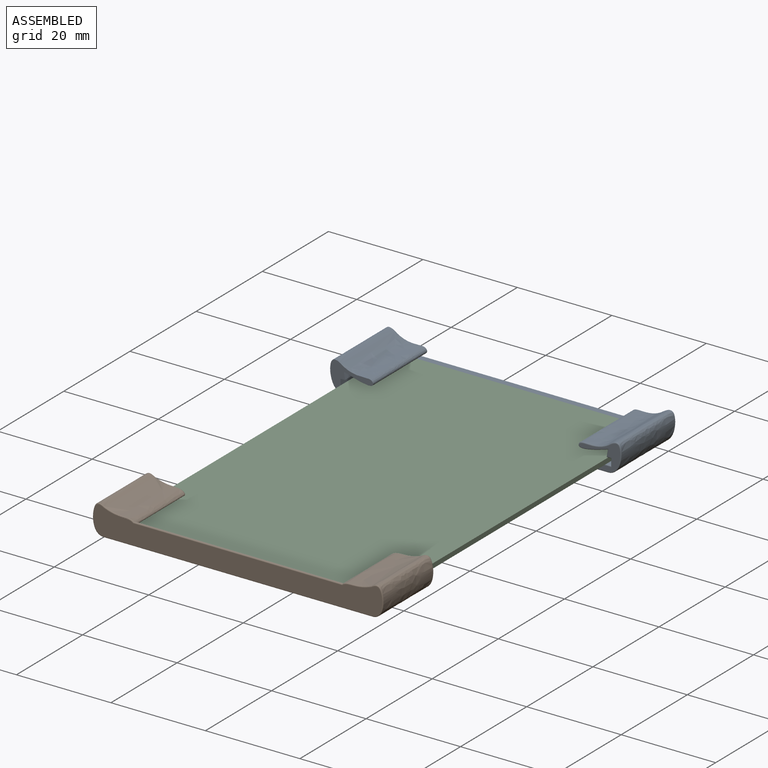
[diagram: assembled view]
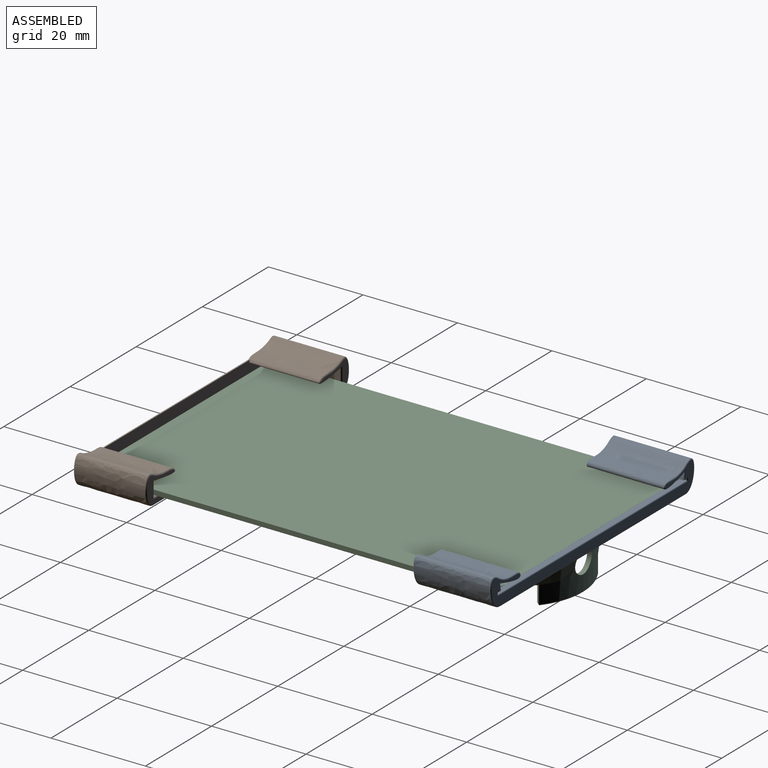
[diagram: assembled view, second angle]
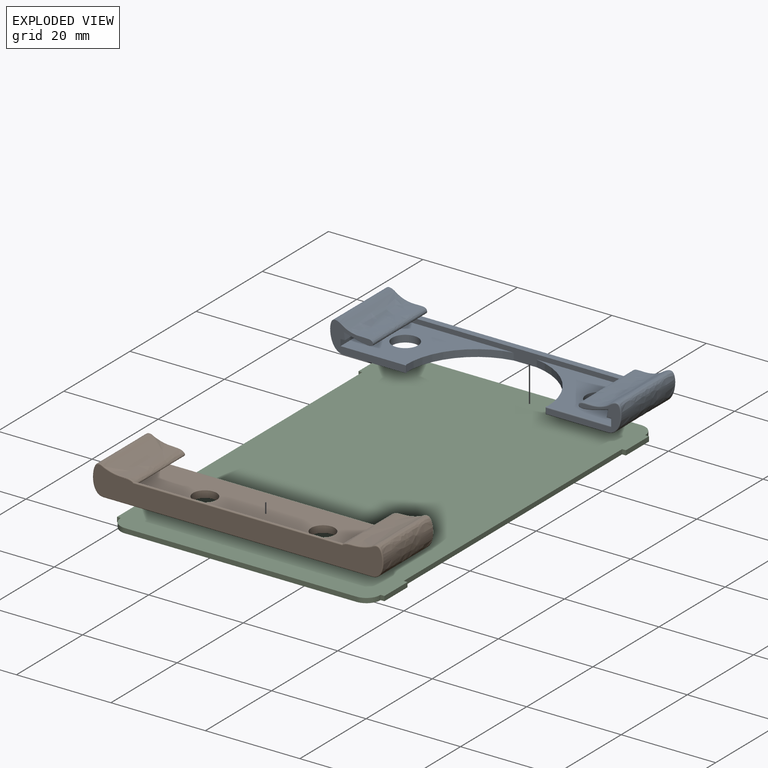
[diagram: exploded view]
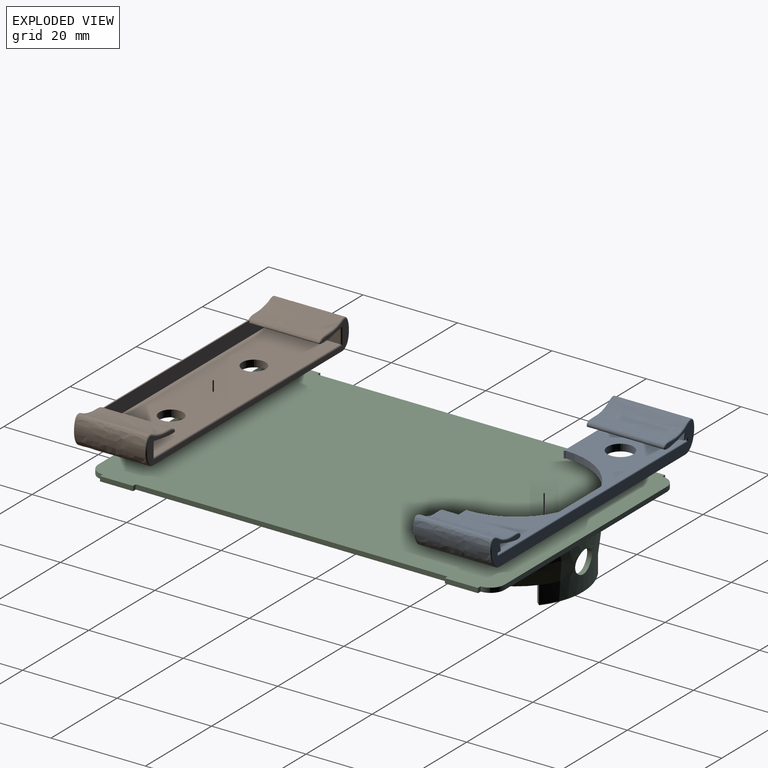
[diagram: exploded view, second angle]
ASSEMBLY  parts=3 mates=2
PART A: 46 faces, bbox 62.1x16.5x6.9 mm
  f0: plane 55.68x16.3mm, normal (0,0,-1), area 499.7mm2, adj f1,f9,f10,f15,f18,f19,f20,f21
  f1: plane 57.2x2.47mm, normal (0,-1,0), area 64mm2, adj f0,f2,f4,f5,f14,f16,f18,f23
  f2: plane 26.16x14.8mm, normal (0,0,1), area 223.6mm2, adj f1,f5,f18,f19,f20,f25,f32
  f3: plane 15.64x5.82mm, normal (0,-1,0), area 28.2mm2, adj f26,f27,f28,f29,f30,f31,f32,f33
  f4: plane 26.16x15mm, normal (0,0,1), area 226.3mm2, adj f1,f14,f15,f21,f22,f23,f24
  f5: plane 16.1x1.38mm, normal (-1,0,0), area 20.9mm2, adj f1,f2,f6,f16,f30,f37
  f6: plane 16.1x0.95mm, normal (0,0,-1), area 15.3mm2, adj f5,f7,f28,f35
  f7: plane 16.1x1.51mm, normal (-0.99,0,0.17), area 24.6mm2, adj f6,f8,f26,f34
  f8: extruded ~16.1x6.86mm, area 227.7mm2, adj f7,f9,f27,f36
  f9: extruded ~16.1x6.21mm, area 153.3mm2, adj f0,f8,f29,f38
  f10: extruded ~16.3x6.21mm, area 155.2mm2, adj f0,f11,f15,f42
  f11: extruded ~16.3x6.86mm, area 230.5mm2, adj f10,f12,f15,f44
  f12: plane 16.3x1.51mm, normal (0.99,0,0.17), area 24.9mm2, adj f11,f13,f15,f45
  f13: plane 16.3x0.95mm, normal (0,0,-1), area 15.5mm2, adj f12,f14,f15,f43
  f14: plane 16.3x1.38mm, normal (1,0,0), area 21.2mm2, adj f1,f4,f13,f15,f16,f41
  f15: plane 16.56x6.89mm, normal (0,-1,0), area 39.2mm2, adj f0,f4,f10,f11,f12,f13,f14,f21
  f16: plane 57.2x1.3mm, normal (0,0,1), area 74.4mm2, adj f1,f5,f14,f39
  f17: plane 61.19x5.82mm, normal (0,1,0), area 145.2mm2, adj f34,f35,f36,f37,f38,f39,f40,f41
  f18: cylinder r=14.95mm len=14.75mm, axis (0,0,1), area 31.1mm2, adj f0,f1,f2,f20
  f19: plane 1.48x0.05mm, normal (-1,0,0), area 0.1mm2, adj f0,f2,f20,f33
  f20: plane 1.48x0.2mm, normal (0,1,0), area 0.3mm2, adj f0,f2,f18,f19
  f21: plane 1.48x0.25mm, normal (1,0,0), area 0.4mm2, adj f0,f4,f15,f22
  f22: plane 1.48x0.2mm, normal (0,1,0), area 0.3mm2, adj f0,f4,f21,f23
  f23: cylinder r=14.95mm len=14.75mm, axis (0,0,1), area 31.1mm2, adj f0,f1,f4,f22
  f24: cylinder r=2.75mm len=5.5mm, axis (0,0,-1), area 25.5mm2, adj f0,f4
  f25: cylinder r=2.75mm len=5.5mm, axis (0,0,-1), area 25.5mm2, adj f0,f2
  f26: cylinder r=0.2mm len=1.86mm, axis (-0.17,0,-0.99), area 0.5mm2, adj f3,f7,f27,f28
  f27: bspline ~7.22x2.71mm, area 4.4mm2, adj f3,f8,f26,f29
  f28: cylinder r=0.2mm len=1.15mm, axis (1,0,0), area 0.3mm2, adj f3,f6,f26,f30
  f29: bspline ~6.22x3.02mm, area 2.9mm2, adj f3,f9,f27,f31
  f30: cylinder r=0.2mm len=1.78mm, axis (0,0,-1), area 0.5mm2, adj f3,f5,f28,f32
  f31: cylinder r=0.2mm len=13.1mm, axis (1,0,0), area 4.1mm2, adj f0,f3,f29,f33
  f32: cylinder r=0.2mm len=14.05mm, axis (-1,0,0), area 4.4mm2, adj f2,f3,f30,f33
  f33: cylinder r=0.2mm len=1.48mm, axis (0,0,-1), area 0.4mm2, adj f3,f19,f31,f32
  f34: cylinder r=0.2mm len=1.86mm, axis (0.17,0,0.99), area 0.5mm2, adj f7,f17,f35,f36
  f35: cylinder r=0.2mm len=1.15mm, axis (-1,0,0), area 0.3mm2, adj f6,f17,f34,f37
  f36: bspline ~7.22x2.71mm, area 4.4mm2, adj f8,f17,f34,f38
  f37: cylinder r=0.2mm len=0.79mm, axis (0,0,1), area 0.2mm2, adj f5,f17,f35,f39
  f38: bspline ~6.22x3.05mm, area 2.9mm2, adj f9,f17,f36,f40
  f39: cylinder r=0.2mm len=57.6mm, axis (-1,0,0), area 18mm2, adj f16,f17,f37,f41
  f40: cylinder r=0.2mm len=55.69mm, axis (-1,0,0), area 17.5mm2, adj f0,f17,f38,f42
  f41: cylinder r=0.2mm len=0.79mm, axis (0,0,-1), area 0.2mm2, adj f14,f17,f39,f43
  f42: bspline ~6.22x3.05mm, area 2.9mm2, adj f10,f17,f40,f44
  f43: cylinder r=0.2mm len=1.15mm, axis (-1,0,0), area 0.3mm2, adj f13,f17,f41,f45
  f44: bspline ~7.22x2.71mm, area 4.4mm2, adj f11,f17,f42,f45
  f45: cylinder r=0.2mm len=1.86mm, axis (0.17,0,-0.99), area 0.5mm2, adj f12,f17,f43,f44
PART B: 32 faces, bbox 61.5x15.4x6.3 mm
  f0: plane 56.6x14.7mm, normal (0,0,-1), area 792.8mm2, adj f3,f4,f9,f10,f12,f15
  f1: plane 56.6x14.9mm, normal (0,0,1), area 804.1mm2, adj f6,f7,f9,f10,f24,f26
  f2: extruded ~14.9x6.51mm, area 202mm2, adj f3,f7,f12,f13,f16,f18,f20,f30
  f3: plane 14.7x3.1mm, normal (1,0,0), area 45.6mm2, adj f0,f2,f12,f14
  f4: plane 14.7x3.1mm, normal (-1,0,0), area 45.6mm2, adj f0,f5,f12,f17
  f5: extruded ~14.9x6.51mm, area 202mm2, adj f4,f6,f12,f13,f19,f21,f23,f29
  f6: extruded ~14.9x6.27mm, area 139.7mm2, adj f1,f5,f25,f27
  f7: extruded ~14.9x6.27mm, area 139.7mm2, adj f1,f2,f22,f28
  f8: plane 60.88x5.68mm, normal (0,1,0), area 73.9mm2, adj f14,f15,f16,f17,f19,f20,f22,f23
  f9: cylinder r=2.5mm len=5mm, axis (0,0,1), area 23.2mm2, adj f0,f1
  f10: cylinder r=2.5mm len=5mm, axis (0,0,1), area 23.2mm2, adj f0,f1
  f11: plane 61.09x5.88mm, normal (0,-1,0), area 266.5mm2, adj f26,f27,f28,f29,f30,f31
  f12: plane 56.6x3.42mm, normal (0,1,0), area 169.5mm2, adj f0,f2,f3,f4,f5,f13
  f13: plane 44.13x0.2mm, normal (0,0,-1), area 8.8mm2, adj f2,f5,f12,f31
  f14: cylinder r=0.3mm len=3.76mm, axis (0,0,1), area 1.6mm2, adj f3,f8,f15,f16
  f15: cylinder r=0.3mm len=57.2mm, axis (1,0,0), area 26.8mm2, adj f0,f8,f14,f17
  f16: bspline ~8.22x1.34mm, area 3.1mm2, adj f2,f8,f14,f18
  f17: cylinder r=0.3mm len=3.76mm, axis (0,0,-1), area 1.6mm2, adj f4,f8,f15,f19
  f18: bspline ~0.38x0.34mm, area 0.1mm2, adj f2,f16,f20
  f19: bspline ~8.22x1.34mm, area 3.1mm2, adj f5,f8,f17,f21
  f20: bspline ~7.27x2.01mm, area 3.2mm2, adj f2,f8,f18,f22
  f21: bspline ~0.38x0.34mm, area 0.1mm2, adj f5,f19,f23
  f22: bspline ~6.28x2.53mm, area 4.2mm2, adj f7,f8,f20,f24
  f23: bspline ~7.28x2.09mm, area 3.2mm2, adj f5,f8,f21,f25
  f24: cylinder r=0.3mm len=56.62mm, axis (-1,0,0), area 26.7mm2, adj f1,f8,f22,f25
  f25: bspline ~6.28x2.53mm, area 4.2mm2, adj f6,f8,f23,f24
  f26: cylinder r=0.2mm len=56.61mm, axis (1,0,0), area 17.8mm2, adj f1,f11,f27,f28
  f27: bspline ~6.28x2.54mm, area 2.9mm2, adj f6,f11,f26,f29
  f28: bspline ~6.28x2.54mm, area 2.9mm2, adj f7,f11,f26,f30
  f29: bspline ~6.66x1.65mm, area 2mm2, adj f5,f11,f27,f31
  f30: bspline ~6.66x1.65mm, area 2mm2, adj f2,f11,f28,f31
  f31: cylinder r=0.2mm len=44.28mm, axis (-1,0,0), area 13.9mm2, adj f11,f13,f29,f30
PART C: 80 faces, bbox 56.6x86.7x11 mm
  f0: cone r=14.75mm half-angle=7.1deg, axis (0,0,1), area 82.9mm2, adj f2,f25,f44,f56,f59
  f1: cone r=13.75mm half-angle=7.1deg, axis (0,0,1), area 76.6mm2, adj f29,f41,f47,f57,f59
  f2: plane 26.09x5.93mm, normal (0,0,-1), area 27.3mm2, adj f0,f31,f44,f45,f46,f54
  f3: plane 86x56.6mm, normal (0,0,-1), area 4576.3mm2, adj f4,f5,f6,f7,f8,f9,f10,f11
  f4: plane 49x1mm, normal (0,1,0), area 49mm2, adj f3,f5,f23,f24
  f5: cylinder r=3mm len=3mm, axis (0,0,1), area 4.7mm2, adj f3,f4,f6,f24
  f6: plane 1x0.8mm, normal (0,1,0), area 0.8mm2, adj f3,f5,f7,f24
  f7: plane 7x1mm, normal (-1,0,0), area 7mm2, adj f3,f6,f8,f24
  f8: plane 1x0.8mm, normal (0,-1,0), area 0.8mm2, adj f3,f7,f9,f24
  f9: plane 66x1mm, normal (-1,0,0), area 66mm2, adj f3,f8,f10,f24
  f10: plane 1x0.8mm, normal (0,1,0), area 0.8mm2, adj f3,f9,f11,f24
  f11: plane 7x1mm, normal (-1,0,0), area 7mm2, adj f3,f10,f12,f24
  f12: plane 1x0.8mm, normal (0,-1,0), area 0.8mm2, adj f3,f11,f13,f24
  f13: cylinder r=3mm len=3mm, axis (0,0,1), area 4.7mm2, adj f3,f12,f14,f24
  f14: plane 49x1mm, normal (0,-1,0), area 49mm2, adj f3,f13,f15,f24
  f15: cylinder r=3mm len=3mm, axis (0,0,1), area 4.7mm2, adj f3,f14,f16,f24
  f16: plane 1x0.8mm, normal (0,-1,0), area 0.8mm2, adj f3,f15,f17,f24
  f17: plane 7x1mm, normal (1,0,0), area 7mm2, adj f3,f16,f18,f24
  f18: plane 1x0.8mm, normal (0,1,0), area 0.8mm2, adj f3,f17,f19,f24
  f19: plane 66x1mm, normal (1,0,0), area 66mm2, adj f3,f18,f20,f24
  f20: plane 1x0.8mm, normal (0,-1,0), area 0.8mm2, adj f3,f19,f21,f24
  f21: plane 7x1mm, normal (1,0,0), area 7mm2, adj f3,f20,f22,f24
  f22: plane 1x0.8mm, normal (0,1,0), area 0.8mm2, adj f3,f21,f23,f24
  f23: cylinder r=3mm len=3mm, axis (0,0,1), area 4.7mm2, adj f3,f4,f22,f24
  f24: plane 86x56.6mm, normal (0,0,1), area 4744.7mm2, adj f4,f5,f6,f7,f8,f9,f10,f11
  f25: cylinder r=14.75mm len=29.5mm, axis (0,0,1), area 91.7mm2, adj f0,f3,f26,f32,f43,f59
  f26: plane 15x2mm, normal (-1,0,0), area 30mm2, adj f3,f25,f27,f42
  f27: plane 6x1.5mm, normal (0,-1,0), area 6mm2, adj f3,f26,f28,f41,f42,f47
  f28: plane 15x2mm, normal (1,0,0), area 30mm2, adj f3,f27,f29,f47
  f29: cylinder r=13.75mm len=27.5mm, axis (0,0,1), area 85.4mm2, adj f1,f3,f28,f30,f46,f59
  f30: plane 15x2mm, normal (-1,0,0), area 30mm2, adj f3,f29,f31,f45
  f31: plane 6x1.5mm, normal (0,-1,0), area 6mm2, adj f2,f3,f30,f32,f44,f45
  f32: plane 15x2mm, normal (1,0,0), area 30mm2, adj f3,f25,f31,f44
  f33: plane 5.7x1.46mm, normal (0,1,0), area 5.7mm2, adj f3,f34,f36,f52,f53,f69,f71
  f34: plane 15x2mm, normal (-1,0,0), area 30mm2, adj f3,f33,f35,f52
  f35: plane 5.7x1.46mm, normal (0,-1,0), area 5.7mm2, adj f3,f34,f36,f52,f53,f70,f71
  f36: plane 15x2mm, normal (1,0,0), area 30mm2, adj f3,f33,f35,f53
  f37: plane 5.7x1.46mm, normal (0,-1,0), area 5.7mm2, adj f3,f38,f40,f49,f50,f72,f74
  f38: plane 15x2mm, normal (1,0,0), area 30mm2, adj f3,f37,f39,f50
  f39: plane 5.7x1.46mm, normal (0,1,0), area 5.7mm2, adj f3,f38,f40,f49,f50,f72,f73
  f40: plane 15x2mm, normal (-1,0,0), area 30mm2, adj f3,f37,f39,f49
  f41: plane 26.09x5.93mm, normal (0,0,-1), area 27.3mm2, adj f1,f27,f42,f43,f47,f58
  f42: plane 15x4mm, normal (-0.99,0,-0.12), area 60.5mm2, adj f26,f27,f41,f43
  f43: cone r=14.75mm half-angle=7.1deg, axis (0,0,1), area 82.9mm2, adj f25,f41,f42,f56,f59
  f44: plane 15x4mm, normal (0.99,0,-0.12), area 60.5mm2, adj f0,f2,f31,f32
  f45: plane 15x4mm, normal (-0.99,0,0.12), area 60.5mm2, adj f2,f30,f31,f46
  f46: cone r=13.75mm half-angle=7.1deg, axis (0,0,1), area 76.6mm2, adj f2,f29,f45,f57,f59
  f47: plane 15x4mm, normal (0.99,0,0.12), area 60.5mm2, adj f1,f27,f28,f41
  f48: plane 14.4x0.4mm, normal (0,0,-1), area 5.7mm2, adj f72,f73,f74,f75
  f49: plane 15x3.66mm, normal (-0.99,0,0.12), area 55.4mm2, adj f37,f39,f40,f72
  f50: plane 15x3.74mm, normal (0.99,0,-0.12), area 56.5mm2, adj f37,f38,f39,f73,f74,f75
  f51: plane 14.4x0.4mm, normal (0,0,-1), area 5.7mm2, adj f68,f69,f70,f71
  f52: plane 15x3.74mm, normal (-0.99,0,-0.12), area 56.5mm2, adj f33,f34,f35,f68,f69,f70
  f53: plane 15x3.66mm, normal (0.99,0,0.12), area 55.4mm2, adj f33,f35,f36,f71
  f54: plane 3.7x0.78mm, normal (0.78,-0.63,0), area 3.7mm2, adj f2,f56,f57,f77
  f55: plane 17.06x3.22mm, normal (0,0,-1), area 7.2mm2, adj f76,f77,f78,f79
  f56: cylinder r=14.25mm len=17.9mm, axis (0,0,-1), area 70.6mm2, adj f0,f43,f54,f58,f59,f76
  f57: cylinder r=13.25mm len=16.65mm, axis (0,0,-1), area 65.6mm2, adj f1,f46,f54,f58,f59,f79
  f58: plane 3.7x0.78mm, normal (-0.78,-0.63,0), area 3.7mm2, adj f41,f56,f57,f78
  f59: cylinder r=2.5mm len=5mm, axis (0,1,0), area 15.8mm2, adj f0,f1,f25,f29,f43,f46,f56,f57
  f60: cylinder r=2.25mm len=4.5mm, axis (0,0,1), area 24mm2, adj f3,f61
  f61: plane 4.5x4.5mm, normal (0,0,-1), area 15.9mm2, adj f60
  f62: cylinder r=2.25mm len=4.5mm, axis (0,0,1), area 24mm2, adj f3,f63
  f63: plane 4.5x4.5mm, normal (0,0,-1), area 15.9mm2, adj f62
  f64: cylinder r=2.25mm len=4.5mm, axis (0,0,1), area 24mm2, adj f3,f65
  f65: plane 4.5x4.5mm, normal (0,0,-1), area 15.9mm2, adj f64
  f66: cylinder r=2.25mm len=4.5mm, axis (0,0,1), area 24mm2, adj f3,f67
  f67: plane 4.5x4.5mm, normal (0,0,-1), area 15.9mm2, adj f66
  f68: cylinder r=0.3mm len=15mm, axis (0,1,0), area 6.4mm2, adj f51,f52,f69,f70
  f69: cylinder r=0.3mm len=1mm, axis (-1,0,0), area 0.4mm2, adj f33,f51,f52,f68,f71
  f70: cylinder r=0.3mm len=1mm, axis (-1,0,0), area 0.4mm2, adj f35,f51,f52,f68,f71
  f71: cylinder r=0.3mm len=15mm, axis (0,1,0), area 7.5mm2, adj f33,f35,f51,f53,f69,f70
  f72: cylinder r=0.3mm len=15mm, axis (0,1,0), area 7.5mm2, adj f37,f39,f48,f49,f73,f74
  f73: cylinder r=0.3mm len=1mm, axis (1,0,0), area 0.4mm2, adj f39,f48,f50,f72,f75
  f74: cylinder r=0.3mm len=1mm, axis (1,0,0), area 0.4mm2, adj f37,f48,f50,f72,f75
  f75: cylinder r=0.3mm len=15mm, axis (0,1,0), area 6.4mm2, adj f48,f50,f73,f74
  f76: torus R=13.95mm, axis (0,0,-1), area 9mm2, adj f55,f56,f77,f78
  f77: cylinder r=0.3mm len=0.97mm, axis (-0.63,-0.78,0), area 0.4mm2, adj f54,f55,f76,f79
  f78: cylinder r=0.3mm len=0.97mm, axis (-0.63,0.78,0), area 0.4mm2, adj f55,f58,f76,f79
  f79: torus R=13.55mm, axis (0,0,-1), area 8.4mm2, adj f55,f57,f77,f78
PLACE A t=(-26.53,-82.13,-10.7)mm
PLACE B rot(axis=(0,1,0),180deg) t=(0.97,-67.63,-11.7)mm
PLACE C t=(-26.53,-82.13,-10.7)mm
MATE fastened C.f64 <-> A.f25  axis (0,0,-1) through (21.47,-3.13,-11.7)mm
MATE fastened C.f62 <-> B.f9  axis (0,0,-1) through (-11.53,-75.13,-11.7)mm
